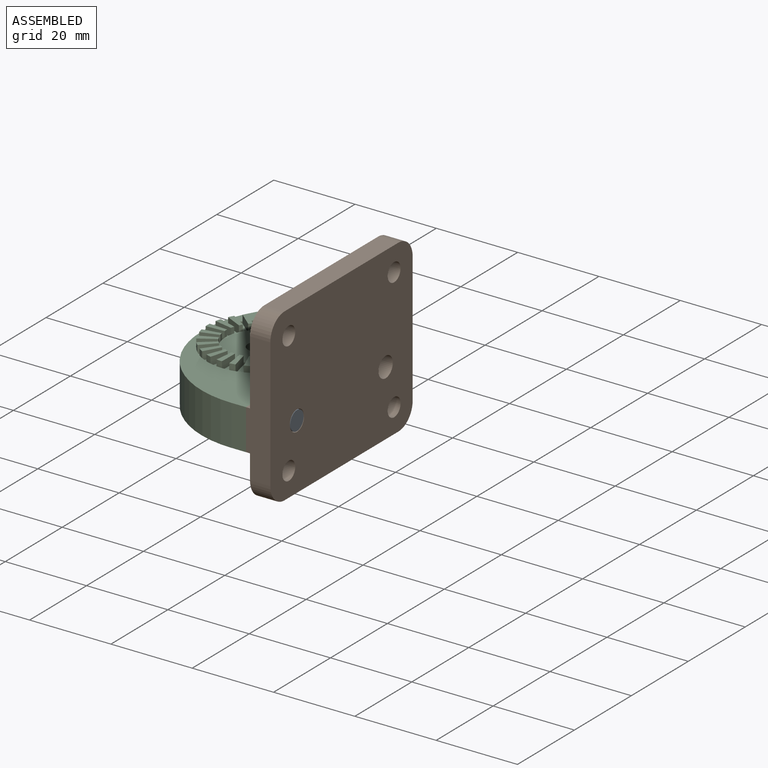
[diagram: assembled view]
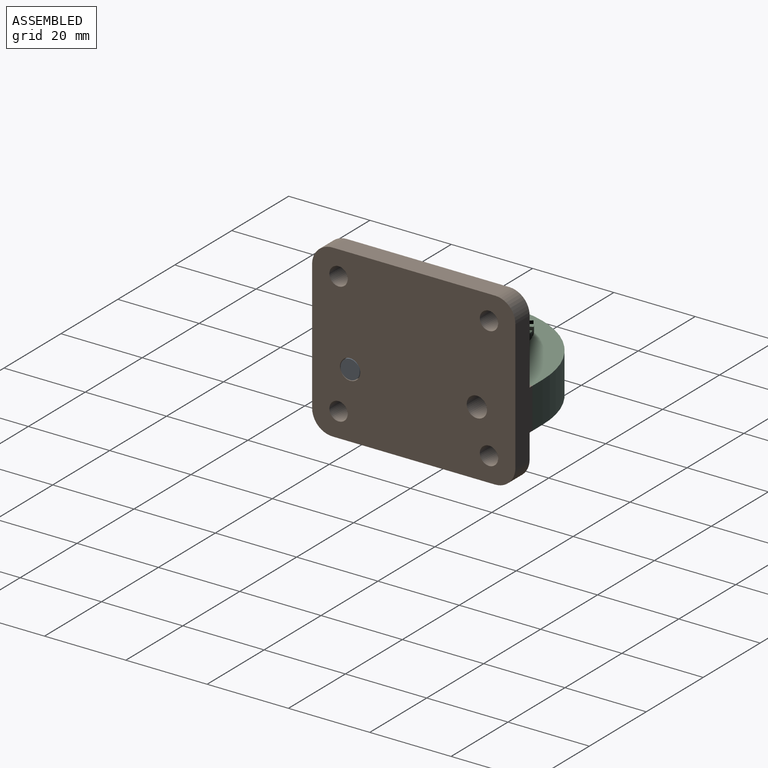
[diagram: assembled view, second angle]
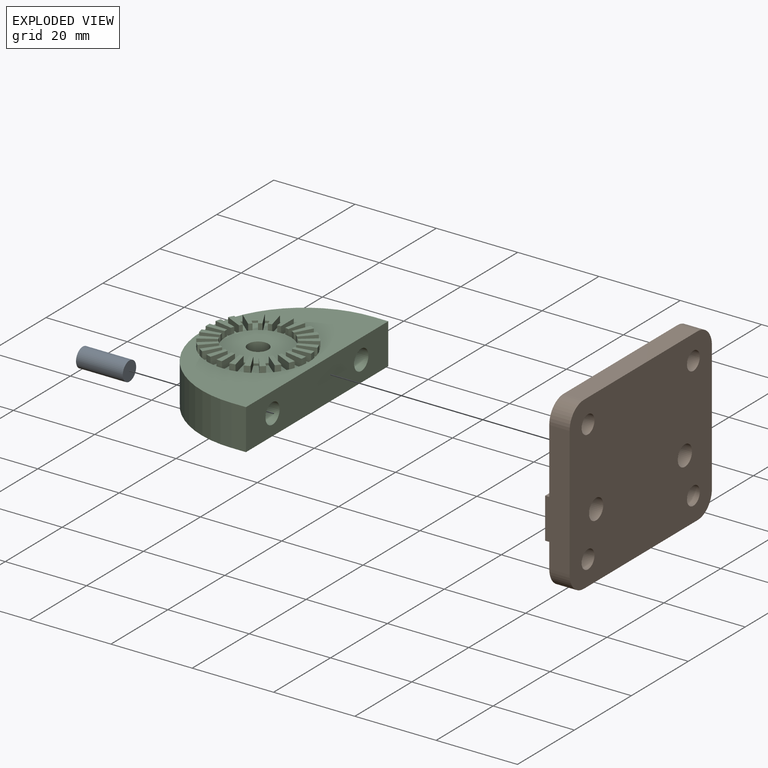
[diagram: exploded view]
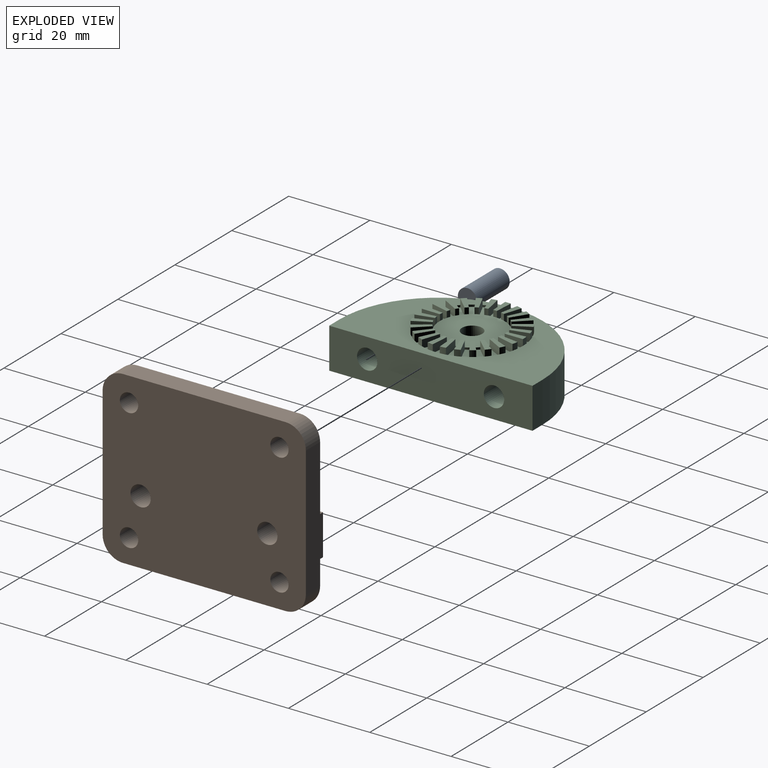
[diagram: exploded view, second angle]
ASSEMBLY  parts=3 mates=2
PART A: 3 faces, bbox 4.7x4.7x11.5 mm
  f0: cylinder r=2.35mm len=11.5mm, axis (0,0,-1), area 169.8mm2, adj f1,f2
  f1: plane 4.7x4.7mm, normal (0,0,1), area 17.3mm2, adj f0
  f2: plane 4.7x4.7mm, normal (0,0,-1), area 17.3mm2, adj f0
PART B: 20 faces, bbox 42x50x6 mm
  f0: plane 50x10mm, normal (0,0,1), area 460.7mm2, adj f14,f15,f16,f17,f18,f19
  f1: cylinder r=2.25mm len=5mm, axis (0,0,1), area 70.7mm2, adj f10,f12
  f2: cylinder r=2.25mm len=5mm, axis (0,0,1), area 70.7mm2, adj f10,f12
  f3: plane 40x5mm, normal (-1,0,0), area 200mm2, adj f7,f10,f11,f12
  f4: plane 40x5mm, normal (1,0,0), area 200mm2, adj f8,f9,f10,f13
  f5: cylinder r=2.25mm len=5mm, axis (0,0,1), area 70.7mm2, adj f10,f13
  f6: cylinder r=2.25mm len=5mm, axis (0,0,1), area 70.7mm2, adj f10,f13
  f7: cylinder r=5mm len=5mm, axis (0,0,1), area 39.3mm2, adj f3,f10,f12,f17
  f8: cylinder r=5mm len=5mm, axis (0,0,-1), area 39.3mm2, adj f4,f10,f13,f17
  f9: cylinder r=5mm len=5mm, axis (0,0,1), area 39.3mm2, adj f4,f10,f13,f16
  f10: plane 50x42mm, normal (0,0,-1), area 1975.7mm2, adj f1,f2,f3,f4,f5,f6,f7,f8
  f11: cylinder r=5mm len=5mm, axis (0,0,-1), area 39.3mm2, adj f3,f10,f12,f16
  f12: plane 50x11mm, normal (0,0,1), area 507.5mm2, adj f1,f2,f3,f7,f11,f15,f16,f17
  f13: plane 50x21mm, normal (0,0,1), area 1007.5mm2, adj f4,f5,f6,f8,f9,f14,f16,f17
  f14: plane 50x1mm, normal (1,0,0), area 50mm2, adj f0,f13,f16,f17
  f15: plane 50x1mm, normal (-1,0,0), area 50mm2, adj f0,f12,f16,f17
  f16: plane 32x6mm, normal (0,-1,0), area 170mm2, adj f0,f9,f10,f11,f12,f13,f14,f15
  f17: plane 32x6mm, normal (0,1,0), area 170mm2, adj f0,f7,f8,f10,f12,f13,f14,f15
  f18: cylinder r=2.5mm len=6mm, axis (0,0,-1), area 94.2mm2, adj f0,f10
  f19: cylinder r=2.5mm len=6mm, axis (0,0,-1), area 94.2mm2, adj f0,f10
PART C: 216 faces, bbox 11.5x50x28 mm
  f0: cylinder r=8mm len=1.5mm, axis (-1,0,0), area 1.3mm2, adj f49,f74,f203,f207
  f1: cylinder r=8mm len=1.5mm, axis (-1,0,0), area 1.3mm2, adj f50,f74,f188,f202
  f2: cylinder r=8mm len=1.5mm, axis (-1,0,0), area 1.3mm2, adj f51,f74,f193,f197
  f3: cylinder r=8mm len=1.5mm, axis (-1,0,0), area 1.3mm2, adj f52,f74,f192,f208
  f4: cylinder r=8mm len=1.5mm, axis (-1,0,0), area 1.3mm2, adj f53,f74,f183,f187
  f5: cylinder r=8mm len=1.5mm, axis (-1,0,0), area 1.3mm2, adj f54,f74,f173,f182
  f6: cylinder r=8mm len=1.5mm, axis (-1,0,0), area 1.3mm2, adj f55,f74,f118,f177
  f7: cylinder r=8mm len=1.5mm, axis (-1,0,0), area 1.3mm2, adj f56,f74,f172,f178
  f8: cylinder r=8mm len=1.5mm, axis (-1,0,0), area 1.3mm2, adj f57,f74,f142,f167
  f9: cylinder r=8mm len=1.5mm, axis (-1,0,0), area 1.3mm2, adj f58,f74,f158,f162
  f10: cylinder r=8mm len=1.5mm, axis (-1,0,0), area 1.3mm2, adj f59,f74,f88,f157
  f11: cylinder r=8mm len=1.5mm, axis (-1,0,0), area 1.3mm2, adj f60,f74,f154,f168
  f12: cylinder r=8mm len=1.5mm, axis (-1,0,0), area 1.3mm2, adj f61,f74,f138,f147
  f13: cylinder r=8mm len=1.5mm, axis (-1,0,0), area 1.3mm2, adj f62,f74,f144,f148
  f14: cylinder r=8mm len=1.5mm, axis (-1,0,0), area 1.3mm2, adj f63,f74,f133,f137
  f15: cylinder r=8mm len=1.5mm, axis (-1,0,0), area 1.3mm2, adj f64,f74,f132,f198
  f16: cylinder r=8mm len=1.5mm, axis (-1,0,0), area 1.3mm2, adj f65,f74,f98,f129
  f17: cylinder r=8mm len=1.5mm, axis (-1,0,0), area 1.3mm2, adj f66,f74,f124,f127
  f18: cylinder r=8mm len=1.5mm, axis (-1,0,0), area 1.3mm2, adj f67,f74,f113,f117
  f19: cylinder r=8mm len=1.5mm, axis (-1,0,0), area 1.3mm2, adj f68,f74,f112,f122
  f20: cylinder r=8mm len=1.5mm, axis (-1,0,0), area 1.3mm2, adj f69,f74,f103,f107
  f21: cylinder r=8mm len=1.5mm, axis (-1,0,0), area 1.3mm2, adj f70,f74,f102,f163
  f22: cylinder r=8mm len=1.5mm, axis (-1,0,0), area 1.3mm2, adj f71,f74,f93,f97
  f23: cylinder r=8mm len=1.5mm, axis (-1,0,0), area 1.3mm2, adj f72,f74,f92,f108
  f24: cylinder r=8mm len=1.5mm, axis (-1,0,0), area 1.3mm2, adj f73,f74,f87,f152
  f25: cylinder r=12.5mm len=1.5mm, axis (-1,0,0), area 2.1mm2, adj f49,f78,f203,f207
  f26: cylinder r=12.5mm len=1.5mm, axis (-1,0,0), area 2.1mm2, adj f50,f78,f188,f202
  f27: cylinder r=12.5mm len=1.5mm, axis (-1,0,0), area 2.1mm2, adj f51,f78,f193,f197
  f28: cylinder r=12.5mm len=1.5mm, axis (-1,0,0), area 2.1mm2, adj f52,f78,f192,f208
  f29: cylinder r=12.5mm len=1.5mm, axis (-1,0,0), area 2.1mm2, adj f53,f78,f183,f187
  f30: cylinder r=12.5mm len=1.5mm, axis (-1,0,0), area 2.1mm2, adj f54,f78,f173,f182
  f31: cylinder r=12.5mm len=1.5mm, axis (-1,0,0), area 2.1mm2, adj f55,f78,f118,f177
  f32: cylinder r=12.5mm len=1.5mm, axis (-1,0,0), area 2.1mm2, adj f56,f78,f172,f178
  f33: cylinder r=12.5mm len=1.5mm, axis (-1,0,0), area 2.1mm2, adj f57,f78,f142,f167
  f34: cylinder r=12.5mm len=1.5mm, axis (-1,0,0), area 2.1mm2, adj f58,f78,f158,f162
  f35: cylinder r=12.5mm len=1.5mm, axis (-1,0,0), area 2.1mm2, adj f59,f78,f88,f157
  f36: cylinder r=12.5mm len=1.5mm, axis (-1,0,0), area 2.1mm2, adj f60,f78,f154,f168
  f37: cylinder r=12.5mm len=1.5mm, axis (-1,0,0), area 2.1mm2, adj f61,f78,f138,f147
  f38: cylinder r=12.5mm len=1.5mm, axis (-1,0,0), area 2.1mm2, adj f62,f78,f144,f148
  f39: cylinder r=12.5mm len=1.5mm, axis (-1,0,0), area 2.1mm2, adj f63,f78,f133,f137
  f40: cylinder r=12.5mm len=1.5mm, axis (-1,0,0), area 2.1mm2, adj f64,f78,f132,f198
  f41: cylinder r=12.5mm len=1.5mm, axis (-1,0,0), area 2.1mm2, adj f65,f78,f98,f129
  f42: cylinder r=12.5mm len=1.5mm, axis (-1,0,0), area 2.1mm2, adj f66,f78,f124,f127
  f43: cylinder r=12.5mm len=1.5mm, axis (-1,0,0), area 2.1mm2, adj f67,f78,f113,f117
  f44: cylinder r=12.5mm len=1.5mm, axis (-1,0,0), area 2.1mm2, adj f68,f78,f112,f122
  f45: cylinder r=12.5mm len=1.5mm, axis (-1,0,0), area 2.1mm2, adj f69,f78,f103,f107
  f46: cylinder r=12.5mm len=1.5mm, axis (-1,0,0), area 2.1mm2, adj f70,f78,f102,f163
  f47: cylinder r=12.5mm len=1.5mm, axis (-1,0,0), area 2.1mm2, adj f71,f78,f93,f97
  f48: cylinder r=12.5mm len=1.5mm, axis (-1,0,0), area 2.1mm2, adj f72,f78,f92,f108
  f49: plane 4.48x3.19mm, normal (1,0,0), area 5.2mm2, adj f0,f25,f203,f207
  f50: plane 4.64x2.25mm, normal (1,0,0), area 5.2mm2, adj f1,f26,f188,f202
  f51: plane 4.42x3.35mm, normal (1,0,0), area 5.2mm2, adj f2,f27,f193,f197
  f52: plane 4.04x3.93mm, normal (1,0,0), area 5.2mm2, adj f3,f28,f192,f208
  f53: plane 4.52x1.4mm, normal (1,0,0), area 5.2mm2, adj f4,f29,f183,f187
  f54: plane 4.64x2.2mm, normal (1,0,0), area 5.2mm2, adj f5,f30,f173,f182
  f55: plane 4.07x3.89mm, normal (1,0,0), area 5.2mm2, adj f6,f31,f118,f177
  f56: plane 4.5x3.14mm, normal (1,0,0), area 5.2mm2, adj f7,f32,f172,f178
  f57: plane 4.18x3.76mm, normal (1,0,0), area 5.2mm2, adj f8,f33,f142,f167
  f58: plane 4.61x1.73mm, normal (1,0,0), area 5.2mm2, adj f9,f34,f158,f162
  f59: plane 4.6x1.67mm, normal (1,0,0), area 5.2mm2, adj f10,f35,f88,f157
  f60: plane 4.32x3.55mm, normal (1,0,0), area 5.2mm2, adj f11,f36,f154,f168
  f61: plane 4.63x2mm, normal (1,0,0), area 5.2mm2, adj f12,f37,f138,f147
  f62: plane 4.55x2.97mm, normal (1,0,0), area 5.2mm2, adj f13,f38,f144,f148
  f63: plane 4.55x1.39mm, normal (1,0,0), area 5.2mm2, adj f14,f39,f133,f137
  f64: plane 4.63x2.45mm, normal (1,0,0), area 5.2mm2, adj f15,f40,f132,f198
  f65: plane 4.63x1.94mm, normal (1,0,0), area 5.2mm2, adj f16,f41,f98,f129
  f66: plane 4.56x1.46mm, normal (1,0,0), area 5.2mm2, adj f17,f42,f124,f127
  f67: plane 4.4x3.4mm, normal (1,0,0), area 5.2mm2, adj f18,f43,f113,f117
  f68: plane 4.62x2.5mm, normal (1,0,0), area 5.2mm2, adj f19,f44,f112,f122
  f69: plane 4.3x3.59mm, normal (1,0,0), area 5.2mm2, adj f20,f45,f103,f107
  f70: plane 4.59x2.74mm, normal (1,0,0), area 5.2mm2, adj f21,f46,f102,f163
  f71: plane 4.56x2.92mm, normal (1,0,0), area 5.2mm2, adj f22,f47,f93,f97
  f72: plane 4.21x3.73mm, normal (1,0,0), area 5.2mm2, adj f23,f48,f92,f108
  f73: plane 4.6x2.69mm, normal (1,0,0), area 5.2mm2, adj f24,f85,f87,f152
  f74: plane 16x16mm, normal (1,0,0), area 181.4mm2, adj f0,f1,f2,f3,f4,f5,f6,f7
  f75: plane 10x3.62mm, normal (0,1,0), area 36.2mm2, adj f77,f78,f81,f211
  f76: plane 10x3.62mm, normal (0,-1,0), area 36.2mm2, adj f77,f78,f80,f211
  f77: plane 50x28mm, normal (-1,0,0), area 1066.3mm2, adj f75,f76,f79,f80,f81,f84,f211
  f78: plane 50x28mm, normal (1,0,0), area 653.9mm2, adj f25,f26,f27,f28,f29,f30,f31,f32
  f79: plane 10x1.23mm, normal (0,0,1), area 12.3mm2, adj f77,f78,f80,f81
  f80: cylinder r=24.38mm len=24.38mm, axis (-1,0,0), area 383mm2, adj f76,f77,f78,f79
  f81: cylinder r=24.38mm len=24.38mm, axis (1,0,0), area 383mm2, adj f75,f77,f78,f79
  f82: cylinder r=2.5mm len=5mm, axis (-1,0,0), area 78.5mm2, adj f74,f83
  f83: plane 10x10mm, normal (-1,0,0), area 58.9mm2, adj f82,f84
  f84: cylinder r=5mm len=10mm, axis (-1,0,0), area 157.1mm2, adj f77,f83
  f85: cylinder r=12.5mm len=1.5mm, axis (-1,0,0), area 2.1mm2, adj f73,f78,f87,f152
  f86: cylinder r=8mm len=1.08mm, axis (1,0,0), area 0.6mm2, adj f74,f87,f88,f90
  f87: plane 4.28x2mm, normal (0,-0.95,-0.31), area 9mm2, adj f24,f73,f85,f86,f89,f90
  f88: plane 4.43x2mm, normal (0,0.98,0.17), area 9mm2, adj f10,f35,f59,f86,f89,f90
  f89: cylinder r=12.5mm len=1.69mm, axis (1,0,0), area 0.9mm2, adj f78,f87,f88,f90
  f90: plane 4.7x2.47mm, normal (1,0,0), area 6.4mm2, adj f86,f87,f88,f89
  f91: cylinder r=8mm len=0.95mm, axis (1,0,0), area 0.6mm2, adj f74,f92,f93,f95
  f92: plane 3.64x2.65mm, normal (0,-0.59,0.81), area 9mm2, adj f23,f48,f72,f91,f94,f95
  f93: plane 3.97x2.11mm, normal (0,0.47,-0.88), area 9mm2, adj f22,f47,f71,f91,f94,f95
  f94: cylinder r=12.5mm len=1.48mm, axis (1,0,0), area 0.9mm2, adj f78,f92,f93,f95
  f95: plane 4.56x3.59mm, normal (1,0,0), area 6.4mm2, adj f91,f92,f93,f94
  f96: cylinder r=8mm len=1.06mm, axis (1,0,0), area 0.6mm2, adj f74,f97,f98,f100
  f97: plane 4.18x2mm, normal (0,-0.37,0.93), area 9mm2, adj f22,f47,f71,f96,f99,f100
  f98: plane 4.37x2mm, normal (0,0.24,-0.97), area 9mm2, adj f16,f41,f65,f96,f99,f100
  f99: cylinder r=12.5mm len=1.66mm, axis (1,0,0), area 0.9mm2, adj f78,f97,f98,f100
  f100: plane 4.71x2.72mm, normal (1,0,0), area 6.4mm2, adj f96,f97,f98,f99
  f101: cylinder r=8mm len=0.97mm, axis (1,0,0), area 0.6mm2, adj f74,f102,f103,f105
  f102: plane 4.07x2mm, normal (0,-0.9,0.43), area 9mm2, adj f21,f46,f70,f101,f104,f105
  f103: plane 3.77x2.46mm, normal (0,0.84,-0.55), area 9mm2, adj f20,f45,f69,f101,f104,f105
  f104: cylinder r=12.5mm len=1.52mm, axis (1,0,0), area 0.9mm2, adj f78,f102,f103,f105
  f105: plane 4.62x3.44mm, normal (1,0,0), area 6.4mm2, adj f101,f102,f103,f104
  f106: cylinder r=8mm len=0.81mm, axis (1,0,0), area 0.6mm2, adj f74,f107,f108,f110
  f107: plane 3.47x2.87mm, normal (0,-0.77,0.64), area 9mm2, adj f20,f45,f69,f106,f109,f110
  f108: plane 3.32x3.03mm, normal (0,0.67,-0.74), area 9mm2, adj f23,f48,f72,f106,f109,f110
  f109: cylinder r=12.5mm len=1.26mm, axis (1,0,0), area 0.9mm2, adj f78,f107,f108,f110
  f110: plane 4.24x4.13mm, normal (1,0,0), area 6.4mm2, adj f106,f107,f108,f109
  f111: cylinder r=8mm len=1.01mm, axis (1,0,0), area 0.6mm2, adj f74,f112,f113,f115
  f112: plane 4.18x2mm, normal (0,0.37,0.93), area 9mm2, adj f19,f44,f68,f111,f114,f115
  f113: plane 3.91x2.22mm, normal (0,-0.49,-0.87), area 9mm2, adj f18,f43,f67,f111,f114,f115
  f114: cylinder r=12.5mm len=1.57mm, axis (1,0,0), area 0.9mm2, adj f78,f112,f113,f115
  f115: plane 4.67x3.23mm, normal (1,0,0), area 6.4mm2, adj f111,f112,f113,f114
  f116: cylinder r=8mm len=0.86mm, axis (1,0,0), area 0.6mm2, adj f74,f117,f118,f120
  f117: plane 3.64x2.65mm, normal (0,0.59,0.81), area 9mm2, adj f18,f43,f67,f116,f119,f120
  f118: plane 3.24x3.13mm, normal (0,-0.69,-0.72), area 9mm2, adj f6,f31,f55,f116,f119,f120
  f119: cylinder r=12.5mm len=1.34mm, axis (1,0,0), area 0.9mm2, adj f78,f117,f118,f120
  f120: plane 4.36x3.98mm, normal (1,0,0), area 6.4mm2, adj f116,f117,f118,f119
  f121: cylinder r=8mm len=1.1mm, axis (1,0,0), area 0.6mm2, adj f74,f122,f124,f125
  f122: plane 4.34x2mm, normal (0,-0.26,-0.97), area 9mm2, adj f19,f44,f68,f121,f123,f125
  f123: cylinder r=12.5mm len=1.71mm, axis (1,0,0), area 0.9mm2, adj f78,f122,f124,f125
  f124: plane 4.46x2mm, normal (0,0.13,0.99), area 9mm2, adj f17,f42,f66,f121,f123,f125
  f125: plane 4.68x2.27mm, normal (1,0,0), area 6.4mm2, adj f121,f122,f123,f124
  f126: cylinder r=8mm len=1.11mm, axis (1,0,0), area 0.6mm2, adj f74,f127,f129,f130
  f127: plane 4.5x2mm, normal (0,-0.01,-1), area 9mm2, adj f17,f42,f66,f126,f128,f130
  f128: cylinder r=12.5mm len=1.74mm, axis (1,0,0), area 0.9mm2, adj f78,f127,f129,f130
  f129: plane 4.46x2mm, normal (0,-0.13,0.99), area 9mm2, adj f16,f41,f65,f126,f128,f130
  f130: plane 4.56x1.74mm, normal (1,0,0), area 6.4mm2, adj f126,f127,f128,f129
  f131: cylinder r=8mm len=1.1mm, axis (1,0,0), area 0.6mm2, adj f74,f132,f133,f135
  f132: plane 4.36x2mm, normal (0,0.25,-0.97), area 9mm2, adj f15,f40,f64,f131,f134,f135
  f133: plane 4.47x2mm, normal (0,-0.11,0.99), area 9mm2, adj f14,f39,f63,f131,f134,f135
  f134: cylinder r=12.5mm len=1.72mm, axis (1,0,0), area 0.9mm2, adj f78,f132,f133,f135
  f135: plane 4.67x2.22mm, normal (1,0,0), area 6.4mm2, adj f131,f132,f133,f134
  f136: cylinder r=8mm len=1.11mm, axis (1,0,0), area 0.6mm2, adj f74,f137,f138,f140
  f137: plane 4.5x2mm, normal (0,0,-1), area 9mm2, adj f14,f39,f63,f136,f139,f140
  f138: plane 4.46x2mm, normal (0,0.14,0.99), area 9mm2, adj f12,f37,f61,f136,f139,f140
  f139: cylinder r=12.5mm len=1.74mm, axis (1,0,0), area 0.9mm2, adj f78,f137,f138,f140
  f140: plane 4.58x1.74mm, normal (1,0,0), area 6.4mm2, adj f136,f137,f138,f139
  f141: cylinder r=8mm len=0.94mm, axis (1,0,0), area 0.6mm2, adj f74,f142,f144,f145
  f142: plane 3.6x2.7mm, normal (0,0.6,0.8), area 9mm2, adj f8,f33,f57,f141,f143,f145
  f143: cylinder r=12.5mm len=1.47mm, axis (1,0,0), area 0.9mm2, adj f78,f142,f144,f145
  f144: plane 3.94x2.17mm, normal (0,-0.48,-0.88), area 9mm2, adj f13,f38,f62,f141,f143,f145
  f145: plane 4.55x3.63mm, normal (1,0,0), area 6.4mm2, adj f141,f142,f143,f144
  f146: cylinder r=8mm len=1.06mm, axis (1,0,0), area 0.6mm2, adj f74,f147,f148,f150
  f147: plane 4.36x2mm, normal (0,-0.25,-0.97), area 9mm2, adj f12,f37,f61,f146,f149,f150
  f148: plane 4.16x2mm, normal (0,0.38,0.92), area 9mm2, adj f13,f38,f62,f146,f149,f150
  f149: cylinder r=12.5mm len=1.65mm, axis (1,0,0), area 0.9mm2, adj f78,f147,f148,f150
  f150: plane 4.71x2.77mm, normal (1,0,0), area 6.4mm2, adj f146,f147,f148,f149
  f151: cylinder r=8mm len=0.98mm, axis (1,0,0), area 0.6mm2, adj f74,f152,f154,f155
  f152: plane 4.1x2mm, normal (0,0.91,0.41), area 9mm2, adj f24,f73,f85,f151,f153,f155
  f153: cylinder r=12.5mm len=1.53mm, axis (1,0,0), area 0.9mm2, adj f78,f152,f154,f155
  f154: plane 3.8x2.41mm, normal (0,-0.84,-0.54), area 9mm2, adj f11,f36,f60,f151,f153,f155
  f155: plane 4.63x3.39mm, normal (1,0,0), area 6.4mm2, adj f151,f152,f153,f154
  f156: cylinder r=8mm len=1.12mm, axis (1,0,0), area 0.6mm2, adj f74,f157,f158,f160
  f157: plane 4.49x2mm, normal (0,-1,-0.06), area 9mm2, adj f10,f35,f59,f156,f159,f160
  f158: plane 4.49x2mm, normal (0,1,-0.08), area 9mm2, adj f9,f34,f58,f156,f159,f160
  f159: cylinder r=12.5mm len=1.74mm, axis (1,0,0), area 0.9mm2, adj f78,f157,f158,f160
  f160: plane 4.52x1.74mm, normal (1,0,0), area 6.4mm2, adj f156,f157,f158,f159
  f161: cylinder r=8mm len=1.08mm, axis (1,0,0), area 0.6mm2, adj f74,f162,f163,f165
  f162: plane 4.42x2mm, normal (0,-0.98,0.19), area 9mm2, adj f9,f34,f58,f161,f164,f165
  f163: plane 4.26x2mm, normal (0,0.95,-0.32), area 9mm2, adj f21,f46,f70,f161,f164,f165
  f164: cylinder r=12.5mm len=1.69mm, axis (1,0,0), area 0.9mm2, adj f78,f162,f163,f165
  f165: plane 4.71x2.53mm, normal (1,0,0), area 6.4mm2, adj f161,f162,f163,f164
  f166: cylinder r=8mm len=0.82mm, axis (1,0,0), area 0.6mm2, adj f74,f167,f168,f170
  f167: plane 3.28x3.08mm, normal (0,-0.68,-0.73), area 9mm2, adj f8,f33,f57,f166,f169,f170
  f168: plane 3.51x2.82mm, normal (0,0.78,0.63), area 9mm2, adj f11,f36,f60,f166,f169,f170
  f169: cylinder r=12.5mm len=1.28mm, axis (1,0,0), area 0.9mm2, adj f78,f167,f168,f170
  f170: plane 4.27x4.1mm, normal (1,0,0), area 6.4mm2, adj f166,f167,f168,f169
  f171: cylinder r=8mm len=1.04mm, axis (1,0,0), area 0.6mm2, adj f74,f172,f173,f175
  f172: plane 4.07x2mm, normal (0,0.9,0.43), area 9mm2, adj f7,f32,f56,f171,f174,f175
  f173: plane 4.3x2mm, normal (0,-0.96,-0.3), area 9mm2, adj f5,f30,f54,f171,f174,f175
  f174: cylinder r=12.5mm len=1.63mm, axis (1,0,0), area 0.9mm2, adj f78,f172,f173,f175
  f175: plane 4.7x2.96mm, normal (1,0,0), area 6.4mm2, adj f171,f172,f173,f174
  f176: cylinder r=8mm len=0.91mm, axis (1,0,0), area 0.6mm2, adj f74,f177,f178,f180
  f177: plane 3.47x2.87mm, normal (0,0.77,0.64), area 9mm2, adj f6,f31,f55,f176,f179,f180
  f178: plane 3.83x2.36mm, normal (0,-0.85,-0.52), area 9mm2, adj f7,f32,f56,f176,f179,f180
  f179: cylinder r=12.5mm len=1.42mm, axis (1,0,0), area 0.9mm2, adj f78,f177,f178,f180
  f180: plane 4.48x3.78mm, normal (1,0,0), area 6.4mm2, adj f176,f177,f178,f179
  f181: cylinder r=8mm len=1.11mm, axis (1,0,0), area 0.6mm2, adj f74,f182,f183,f185
  f182: plane 4.42x2mm, normal (0,0.98,0.19), area 9mm2, adj f5,f30,f54,f181,f184,f185
  f183: plane 4.49x2mm, normal (0,-1,-0.05), area 9mm2, adj f4,f29,f53,f181,f184,f185
  f184: cylinder r=12.5mm len=1.73mm, axis (1,0,0), area 0.9mm2, adj f78,f182,f183,f185
  f185: plane 4.63x1.95mm, normal (1,0,0), area 6.4mm2, adj f181,f182,f183,f184
  f186: cylinder r=8mm len=1.11mm, axis (1,0,0), area 0.6mm2, adj f74,f187,f188,f190
  f187: plane 4.49x2mm, normal (0,1,-0.06), area 9mm2, adj f4,f29,f53,f186,f189,f190
  f188: plane 4.41x2mm, normal (0,-0.98,0.2), area 9mm2, adj f1,f26,f50,f186,f189,f190
  f189: cylinder r=12.5mm len=1.73mm, axis (1,0,0), area 0.9mm2, adj f78,f187,f188,f190
  f190: plane 4.64x2.01mm, normal (1,0,0), area 6.4mm2, adj f186,f187,f188,f189
  f191: cylinder r=8mm len=0.87mm, axis (1,0,0), area 0.6mm2, adj f74,f192,f193,f195
  f192: plane 3.28x3.08mm, normal (0,0.68,-0.73), area 9mm2, adj f3,f28,f52,f191,f194,f195
  f193: plane 3.68x2.59mm, normal (0,-0.58,0.82), area 9mm2, adj f2,f27,f51,f191,f194,f195
  f194: cylinder r=12.5mm len=1.35mm, axis (1,0,0), area 0.9mm2, adj f78,f192,f193,f195
  f195: plane 4.38x3.95mm, normal (1,0,0), area 6.4mm2, adj f191,f192,f193,f194
  f196: cylinder r=8mm len=1.01mm, axis (1,0,0), area 0.6mm2, adj f74,f197,f198,f200
  f197: plane 3.94x2.17mm, normal (0,0.48,-0.88), area 9mm2, adj f2,f27,f51,f196,f199,f200
  f198: plane 4.21x2mm, normal (0,-0.36,0.93), area 9mm2, adj f15,f40,f64,f196,f199,f200
  f199: cylinder r=12.5mm len=1.58mm, axis (1,0,0), area 0.9mm2, adj f78,f197,f198,f200
  f200: plane 4.68x3.18mm, normal (1,0,0), area 6.4mm2, adj f196,f197,f198,f199
  f201: cylinder r=8mm len=1.04mm, axis (1,0,0), area 0.6mm2, adj f74,f202,f203,f205
  f202: plane 4.28x2mm, normal (0,0.95,-0.31), area 9mm2, adj f1,f26,f50,f201,f204,f205
  f203: plane 4.04x2mm, normal (0,-0.9,0.44), area 9mm2, adj f0,f25,f49,f201,f204,f205
  f204: cylinder r=12.5mm len=1.62mm, axis (1,0,0), area 0.9mm2, adj f78,f202,f203,f205
  f205: plane 4.7x3.01mm, normal (1,0,0), area 6.4mm2, adj f201,f202,f203,f204
  f206: cylinder r=8mm len=0.9mm, axis (1,0,0), area 0.6mm2, adj f74,f207,f208,f210
  f207: plane 3.8x2.41mm, normal (0,0.84,-0.54), area 9mm2, adj f0,f25,f49,f206,f209,f210
  f208: plane 3.43x2.92mm, normal (0,-0.76,0.65), area 9mm2, adj f3,f28,f52,f206,f209,f210
  f209: cylinder r=12.5mm len=1.4mm, axis (1,0,0), area 0.9mm2, adj f78,f207,f208,f210
  f210: plane 4.46x3.82mm, normal (1,0,0), area 6.4mm2, adj f206,f207,f208,f209
  f211: plane 50x10mm, normal (0,0,-1), area 460.7mm2, adj f75,f76,f77,f78,f212,f214
  f212: cylinder r=2.5mm len=6mm, axis (0,0,-1), area 94.2mm2, adj f211,f213
  f213: cone r=0mm half-angle=59deg, axis (0,0,-1), area 22.9mm2, adj f212
  f214: cylinder r=2.5mm len=6mm, axis (0,0,-1), area 94.2mm2, adj f211,f215
  f215: cone r=0mm half-angle=59deg, axis (0,0,-1), area 22.9mm2, adj f214
PLACE A rot(axis=(0.71,0,0.71),180deg) t=(19.2,-42.19,-41.79)mm
PLACE B rot(axis=(0,-1,0),90deg) t=(30.7,4.4,17.38)mm
PLACE C rot(axis=(0,-1,0),90deg) t=(30.7,4.4,17.38)mm
MATE fastened A.f0 <-> B.f18  axis (1,0,0) through (30.7,-21.36,8.66)mm
MATE fastened B.f18 <-> C.f212  axis (-1,0,0) through (24.7,-21.36,8.66)mm
